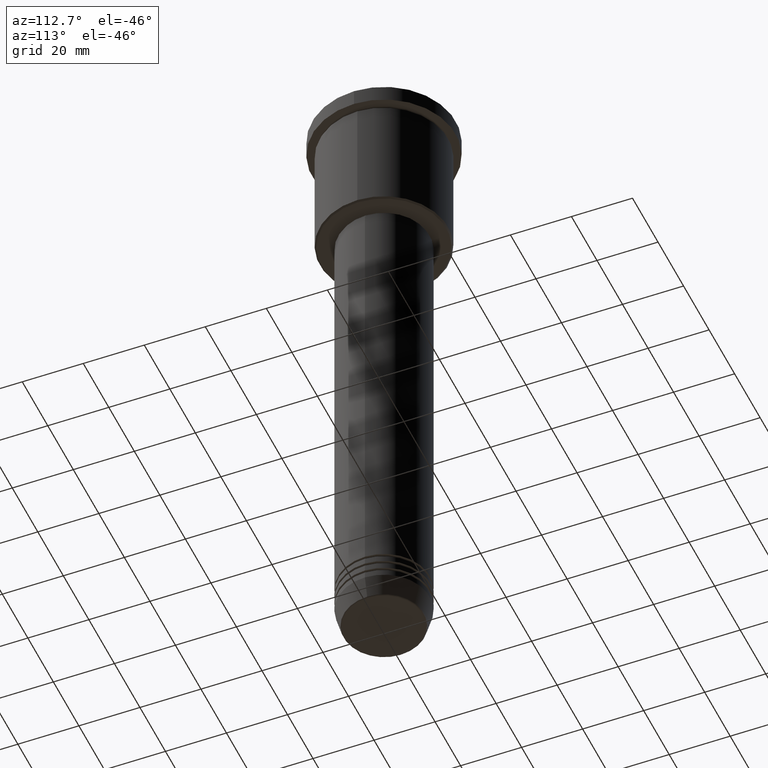
[diagram: clean part render]
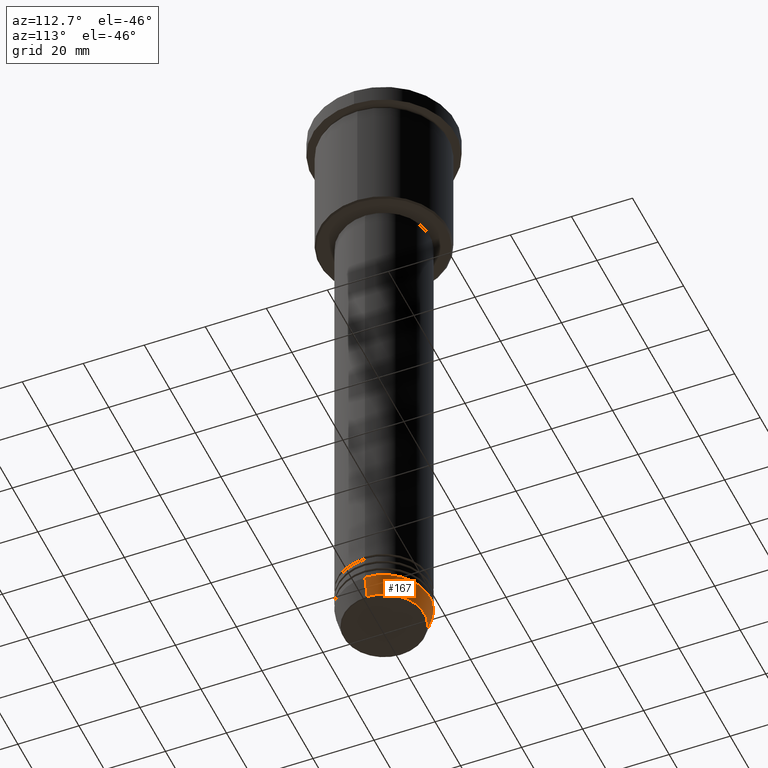
[diagram: same view with one face highlighted and labeled with its STEP entity id]
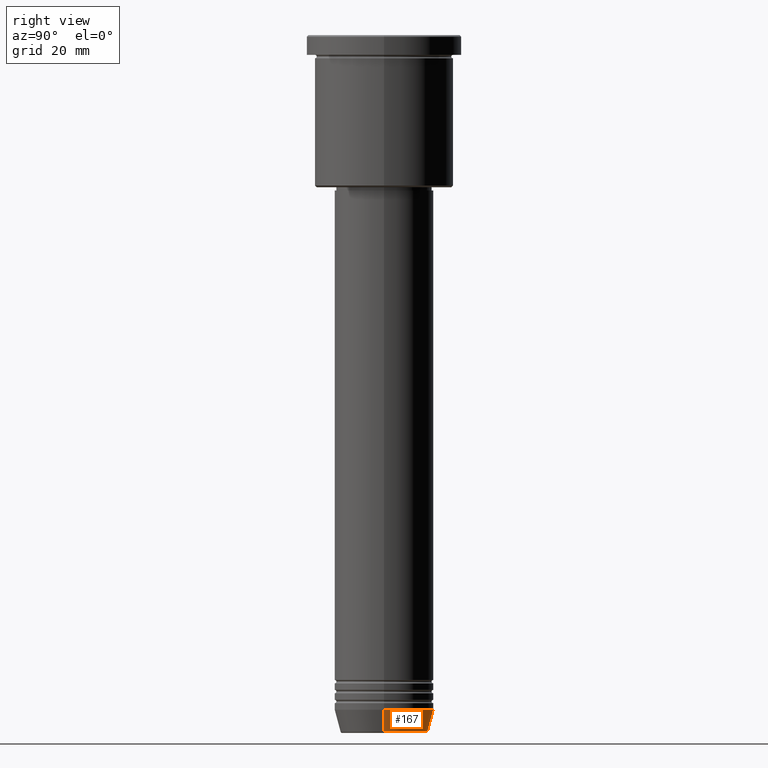
[diagram: same view with one face highlighted and labeled with its STEP entity id]
A machine part, auxiliary view. The second image highlights one B-rep face of the part: STEP entity #167.
A second angle (right view) of the same face is appended — the face is thin or edge-on in the first view.
In plain terms, the highlighted conical surface has half-angle 15 deg.
Its self-contained STEP definition (entity closure, byte-faithful):
#26 = AXIS2_PLACEMENT_3D ( 'NONE', #952, #301, #217 ) ;
#33 = LINE ( 'NONE', #668, #895 ) ;
#81 = LINE ( 'NONE', #171, #1030 ) ;
#117 = VERTEX_POINT ( 'NONE', #533 ) ;
#128 = DIRECTION ( 'NONE',  ( 1.000000000000000000, 0.000000000000000000, 0.000000000000000000 ) ) ;
#146 = ORIENTED_EDGE ( 'NONE', *, *, #634, .F. ) ;
#150 = EDGE_CURVE ( 'NONE', #516, #821, #954, .T. ) ;
#159 = DIRECTION ( 'NONE',  ( -0.2588190451025209615, 3.169619151431767406E-17, 0.9659258262890682012 ) ) ;
#160 = CARTESIAN_POINT ( 'NONE',  ( -13.22365507213720370, 1.728200442216589175E-15, -210.6294095225512706 ) ) ;
#167 = ADVANCED_FACE ( 'NONE', ( #191 ), #178, .T. ) ;
#171 = CARTESIAN_POINT ( 'NONE',  ( -15.00000000000000000, 1.836970198721029589E-15, -204.0000000000000284 ) ) ;
#178 = CONICAL_SURFACE ( 'NONE', #601, 15.00000000000000000, 0.2617993877991496299 ) ;
#191 = FACE_OUTER_BOUND ( 'NONE', #490, .T. ) ;
#217 = DIRECTION ( 'NONE',  ( 1.000000000000000000, 0.000000000000000000, 0.000000000000000000 ) ) ;
#301 = DIRECTION ( 'NONE',  ( -0.000000000000000000, -0.000000000000000000, 1.000000000000000000 ) ) ;
#331 = EDGE_CURVE ( 'NONE', #516, #410, #33, .T. ) ;
#402 = DIRECTION ( 'NONE',  ( 0.2588190451025209615, 0.000000000000000000, 0.9659258262890682012 ) ) ;
#410 = VERTEX_POINT ( 'NONE', #882 ) ;
#435 = ORIENTED_EDGE ( 'NONE', *, *, #150, .T. ) ;
#490 = EDGE_LOOP ( 'NONE', ( #435, #615, #146, #1132 ) ) ;
#491 = DIRECTION ( 'NONE',  ( 1.000000000000000000, 0.000000000000000000, 0.000000000000000000 ) ) ;
#516 = VERTEX_POINT ( 'NONE', #628 ) ;
#529 = EDGE_CURVE ( 'NONE', #821, #117, #81, .T. ) ;
#533 = CARTESIAN_POINT ( 'NONE',  ( -15.00000000000000000, 1.836970198721029589E-15, -204.0000000000000284 ) ) ;
#584 = CARTESIAN_POINT ( 'NONE',  ( 0.000000000000000000, 0.000000000000000000, -204.0000000000000284 ) ) ;
#601 = AXIS2_PLACEMENT_3D ( 'NONE', #584, #859, #128 ) ;
#615 = ORIENTED_EDGE ( 'NONE', *, *, #529, .T. ) ;
#628 = CARTESIAN_POINT ( 'NONE',  ( 13.22365507213720370, 0.000000000000000000, -210.6294095225512706 ) ) ;
#634 = EDGE_CURVE ( 'NONE', #410, #117, #1072, .T. ) ;
#668 = CARTESIAN_POINT ( 'NONE',  ( 15.00000000000000000, 0.000000000000000000, -204.0000000000000284 ) ) ;
#749 = CARTESIAN_POINT ( 'NONE',  ( 0.000000000000000000, 0.000000000000000000, -204.0000000000000284 ) ) ;
#821 = VERTEX_POINT ( 'NONE', #160 ) ;
#859 = DIRECTION ( 'NONE',  ( -0.000000000000000000, -0.000000000000000000, 1.000000000000000000 ) ) ;
#882 = CARTESIAN_POINT ( 'NONE',  ( 15.00000000000000000, 0.000000000000000000, -204.0000000000000284 ) ) ;
#895 = VECTOR ( 'NONE', #402, 1000.000000000000000 ) ;
#952 = CARTESIAN_POINT ( 'NONE',  ( 0.000000000000000000, 0.000000000000000000, -210.6294095225512706 ) ) ;
#954 = CIRCLE ( 'NONE', #26, 13.22365507213720370 ) ;
#1030 = VECTOR ( 'NONE', #159, 1000.000000000000000 ) ;
#1070 = AXIS2_PLACEMENT_3D ( 'NONE', #749, #1099, #491 ) ;
#1072 = CIRCLE ( 'NONE', #1070, 15.00000000000000000 ) ;
#1099 = DIRECTION ( 'NONE',  ( -0.000000000000000000, -0.000000000000000000, 1.000000000000000000 ) ) ;
#1132 = ORIENTED_EDGE ( 'NONE', *, *, #331, .F. ) ;